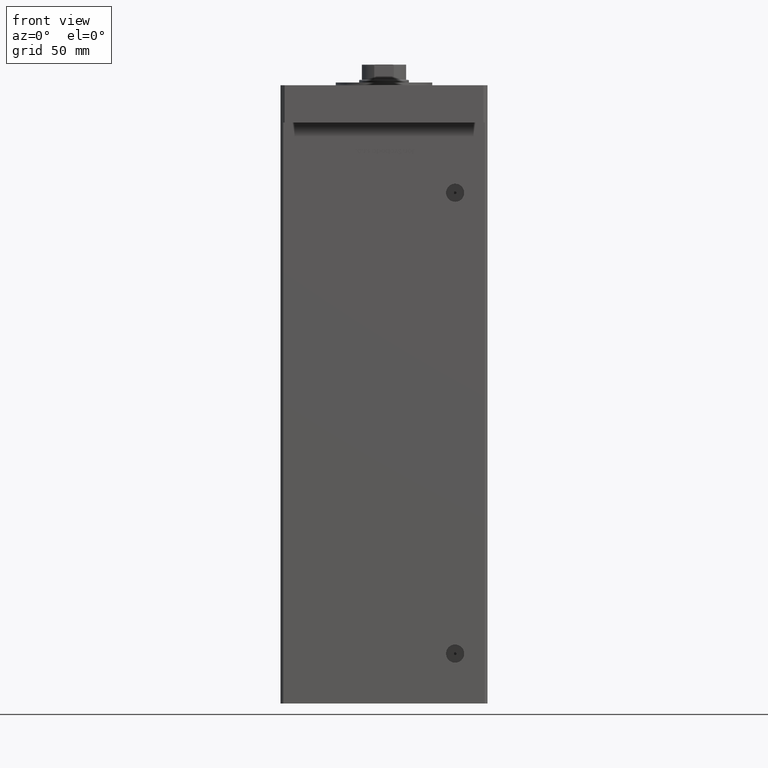
[diagram: clean part render]
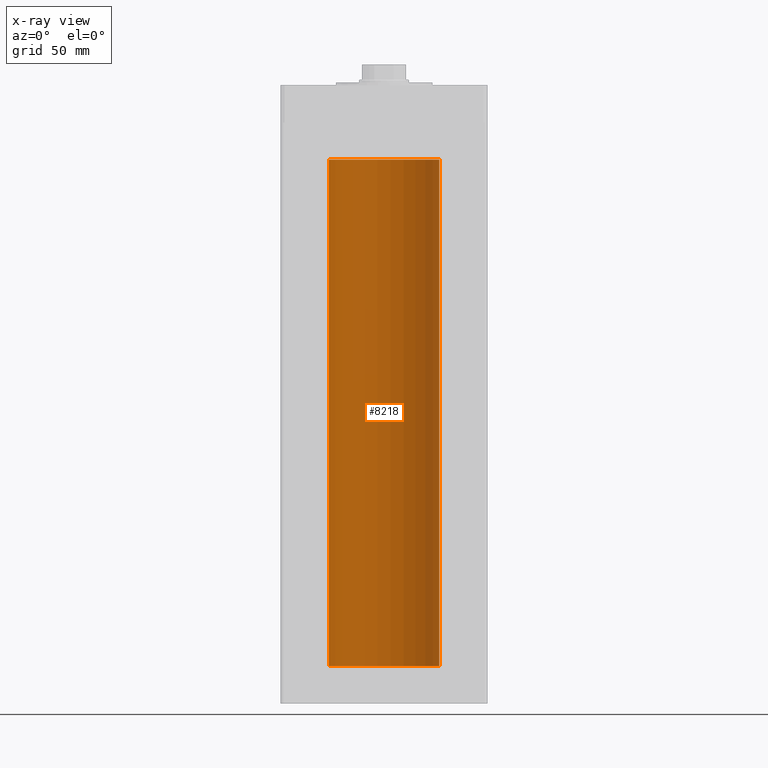
[diagram: x-ray — body ghosted, one internal face saturated and labeled with its STEP entity id]
A machine part, front view, then the same camera in x-ray: the body is ghosted and one INTERNAL B-rep face — a face not visible from any outside direction — is saturated and labeled: STEP entity #8218.
In plain terms, the highlighted cylindrical surface (partial cylindrical patch) has radius 40 mm, axis along (-0, -0, -1).
Its self-contained STEP definition (entity closure, byte-faithful):
#2461 = CIRCLE ( 'NONE', #23218, 40.00000000000000000 ) ;
#2662 = DIRECTION ( 'NONE',  ( 1.000000000000000000, 0.000000000000000000, 0.000000000000000000 ) ) ;
#4323 = CARTESIAN_POINT ( 'NONE',  ( 40.00000000000000000, 4.898587196589413026E-15, 367.0000000000000000 ) ) ;
#4465 = CARTESIAN_POINT ( 'NONE',  ( -40.00000000000000000, 0.000000000000000000, 367.0000000000000000 ) ) ;
#4745 = CARTESIAN_POINT ( 'NONE',  ( -40.00000000000000000, 0.000000000000000000, 367.0000000000000000 ) ) ;
#6200 = EDGE_CURVE ( 'NONE', #22029, #21676, #2461, .T. ) ;
#6933 = EDGE_CURVE ( 'NONE', #17159, #22029, #9470, .T. ) ;
#8218 = ADVANCED_FACE ( 'NONE', ( #47736 ), #14173, .F. ) ;
#9470 = LINE ( 'NONE', #42774, #18066 ) ;
#9885 = EDGE_CURVE ( 'NONE', #17692, #21676, #16916, .T. ) ;
#14173 = CYLINDRICAL_SURFACE ( 'NONE', #19786, 40.00000000000000000 ) ;
#14702 = ORIENTED_EDGE ( 'NONE', *, *, #9885, .T. ) ;
#14960 = ORIENTED_EDGE ( 'NONE', *, *, #31257, .T. ) ;
#16916 = LINE ( 'NONE', #4465, #31093 ) ;
#17057 = DIRECTION ( 'NONE',  ( -0.000000000000000000, -0.000000000000000000, -1.000000000000000000 ) ) ;
#17159 = VERTEX_POINT ( 'NONE', #4323 ) ;
#17692 = VERTEX_POINT ( 'NONE', #4745 ) ;
#18066 = VECTOR ( 'NONE', #17057, 1000.000000000000000 ) ;
#18735 = DIRECTION ( 'NONE',  ( -0.000000000000000000, -0.000000000000000000, -1.000000000000000000 ) ) ;
#19786 = AXIS2_PLACEMENT_3D ( 'NONE', #23074, #18735, #26347 ) ;
#20545 = DIRECTION ( 'NONE',  ( -0.000000000000000000, 0.000000000000000000, 1.000000000000000000 ) ) ;
#21676 = VERTEX_POINT ( 'NONE', #41270 ) ;
#22029 = VERTEX_POINT ( 'NONE', #38746 ) ;
#23074 = CARTESIAN_POINT ( 'NONE',  ( 0.000000000000000000, 0.000000000000000000, 367.0000000000000000 ) ) ;
#23218 = AXIS2_PLACEMENT_3D ( 'NONE', #51151, #43568, #2662 ) ;
#25962 = EDGE_LOOP ( 'NONE', ( #35867, #14960, #14702, #36856 ) ) ;
#26347 = DIRECTION ( 'NONE',  ( -1.000000000000000000, 0.000000000000000000, 0.000000000000000000 ) ) ;
#29492 = CARTESIAN_POINT ( 'NONE',  ( 0.000000000000000000, 0.000000000000000000, 367.0000000000000000 ) ) ;
#31093 = VECTOR ( 'NONE', #45081, 1000.000000000000000 ) ;
#31257 = EDGE_CURVE ( 'NONE', #17159, #17692, #49440, .T. ) ;
#35867 = ORIENTED_EDGE ( 'NONE', *, *, #6933, .F. ) ;
#36856 = ORIENTED_EDGE ( 'NONE', *, *, #6200, .F. ) ;
#38746 = CARTESIAN_POINT ( 'NONE',  ( 40.00000000000000000, 4.898587196589413026E-15, 0.000000000000000000 ) ) ;
#40862 = DIRECTION ( 'NONE',  ( 1.000000000000000000, 0.000000000000000000, 0.000000000000000000 ) ) ;
#41270 = CARTESIAN_POINT ( 'NONE',  ( -40.00000000000000000, 0.000000000000000000, 0.000000000000000000 ) ) ;
#41630 = AXIS2_PLACEMENT_3D ( 'NONE', #29492, #20545, #40862 ) ;
#42774 = CARTESIAN_POINT ( 'NONE',  ( 40.00000000000000000, 4.898587196589413026E-15, 367.0000000000000000 ) ) ;
#43568 = DIRECTION ( 'NONE',  ( -0.000000000000000000, 0.000000000000000000, 1.000000000000000000 ) ) ;
#45081 = DIRECTION ( 'NONE',  ( -0.000000000000000000, -0.000000000000000000, -1.000000000000000000 ) ) ;
#47736 = FACE_OUTER_BOUND ( 'NONE', #25962, .T. ) ;
#49440 = CIRCLE ( 'NONE', #41630, 40.00000000000000000 ) ;
#51151 = CARTESIAN_POINT ( 'NONE',  ( 0.000000000000000000, 0.000000000000000000, 0.000000000000000000 ) ) ;